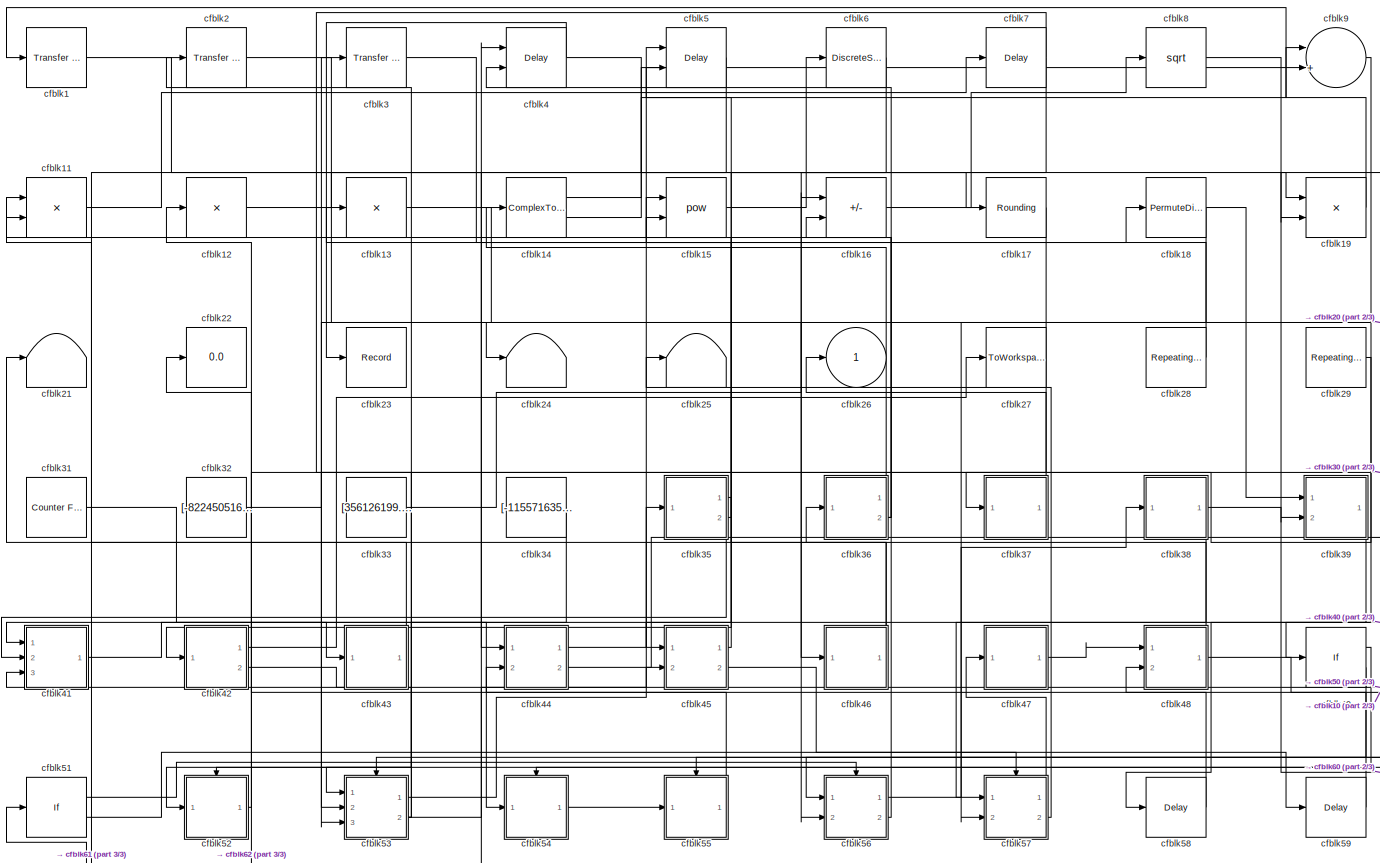
[diagram: root canvas - part 1/3, most of the canvas]
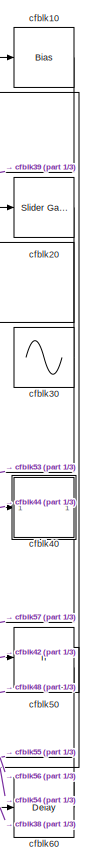
[diagram: root canvas - part 2/3, right side, full height]
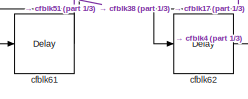
[diagram: root canvas - part 3/3, bottom left region]
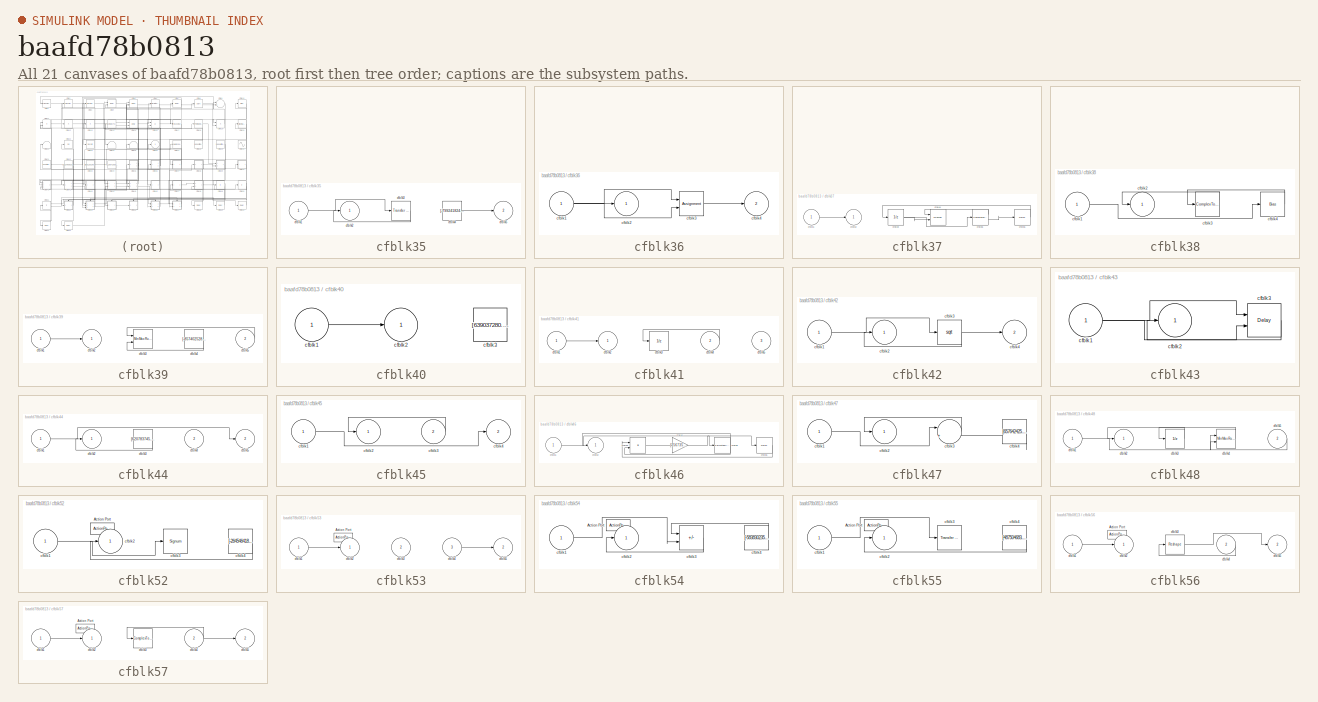
[diagram: thumbnail index - all 21 canvases of the model, root first then tree order]
MODEL slx_baafd78b0813
KIND model
CONFIG AbsTol = auto
CONFIG EnableMultiTasking = off
CONFIG FixedStep = auto
CONFIG MaxStep = auto
CONFIG MinStep = auto
CONFIG RelTol = 1e-3
CONFIG SampleTimeConstraint = Unconstrained
CONFIG SolverName = VariableStepAuto
CONFIG StartTime = 0.0
CONFIG StopTime = 10.0
BLOCK [Reference] cfblk1  REF=simulink/Discrete/Transfer Fcn
Lead or Lag
  Ports = [1, 1]
  SourceBlock = simulink/Discrete/Transfer Fcn\nLead or Lag
  SourceProductBaseCode = SL
  SourceType = Lead or Lag Compensator
BLOCK [Bias] cfblk10
  Bias = [-96006076.372713]
  SaturateOnIntegerOverflow = off
BLOCK [Product] cfblk11
  Inputs = **
  Ports = [2, 1]
BLOCK [Product] cfblk12
  Inputs = *
  Ports = [1, 1]
BLOCK [Product] cfblk13
  Inputs = *
  Ports = [1, 1]
BLOCK [ComplexToMagnitudeAngle] cfblk14
  Ports = [1, 2]
BLOCK [Math] cfblk15
  Operator = pow
  Ports = [2, 1]
BLOCK [Sum] cfblk16
  IconShape = rectangular
  Inputs = +-
  Ports = [2, 1]
BLOCK [Rounding] cfblk17
BLOCK [PermuteDimensions] cfblk18
BLOCK [Product] cfblk19
  Ports = [2, 1]
BLOCK [Reference] cfblk2  REF=simulink/Discrete/Transfer Fcn
Real Zero
  Ports = [1, 1]
  SourceBlock = simulink/Discrete/Transfer Fcn\nReal Zero
  SourceProductBaseCode = SL
  SourceType = Transfer Fcn Real Zero
BLOCK [Reference] cfblk20  REF=simulink/Math
Operations/Slider
Gain
  Ports = [1, 1]
  SourceBlock = simulink/Math\nOperations/Slider\nGain
  SourceProductBaseCode = SL
  SourceType = Slider Gain
BLOCK [Terminator] cfblk21
BLOCK [Display] cfblk22
  Decimation = 1
  Ports = [1]
BLOCK [Record] cfblk23
  FileSettingsInternal = {"entries":[{"content":{"excelSettings":{"content":{},"type":"Streamout.ExcelSettings"}},"type":"Streamout.FileSettingStorage","uuid":"3bb29845-961e-4fee-bd6d-4ce92e24b57c"}],"packageUris":["http://schema.mathworks.com/mf0/streamout_blocks/R2020a"],"version":"1.0"}
  Ports = [1]
  SignalsInternal = {"entries":[{"content":{"signals":[{"content":{"blockPath":["sampleModel184/cfblk23"],"channel":[],"dimensions":[1],"domain":"sampleModel184/cfblk23","lineColor":"#4dbeee","plots":[1],"port":1,"sid":[""],"signalID":6859,"signalName":"cfblk4"},"type":"RecordBlkView.Signal","uuid":"63a490c9-4ba1-4137-91fe-6ad1500206e2"}]},"type":"RecordBlkView.InputSignals","uuid":"3eea0c6d-d5bb-49b1-9db6-edc089c196...<+96ch>
  VisualizationBindings = {"sparklinesplugin":{"info":[{"bindingParametersList":[],"subplotID":1}]}}
BLOCK [Terminator] cfblk24
BLOCK [Terminator] cfblk25
BLOCK [Outport] cfblk26
BLOCK [ToWorkspace] cfblk27
  FixptAsFi = on
  MaxDataPoints = inf
  Ports = [1]
  SampleTime = -1
  SaveFormat = Timeseries
  VariableName = xvzsffu
BLOCK [Reference] cfblk28  REF=simulink/Sources/Repeating
Sequence
Stair
  Ports = [0, 1]
  SourceBlock = simulink/Sources/Repeating\nSequence\nStair
  SourceProductBaseCode = SL
  SourceType = Repeating Sequence Stair
BLOCK [Reference] cfblk29  REF=simulink/Sources/Repeating
Sequence
  Ports = [0, 1]
  SourceBlock = simulink/Sources/Repeating\nSequence
  SourceProductBaseCode = SL
  SourceType = Repeating table
BLOCK [Reference] cfblk3  REF=simulink/Discrete/Transfer Fcn
Lead or Lag
  Ports = [1, 1]
  SourceBlock = simulink/Discrete/Transfer Fcn\nLead or Lag
  SourceProductBaseCode = SL
  SourceType = Lead or Lag Compensator
BLOCK [Sin] cfblk30
  Amplitude = [486537178.471700]
  Bias = [-87359593.712021]
  Ports = [0, 1]
  SampleTime = 0
BLOCK [Reference] cfblk31  REF=simulink/Sources/Counter
Free-Running
  Ports = [0, 1]
  SourceBlock = simulink/Sources/Counter\nFree-Running
  SourceProductBaseCode = SL
  SourceType = Counter Free-Running
BLOCK [Constant] cfblk32
  SampleTime = 1
  Value = [-822450516.524072]
BLOCK [Constant] cfblk33
  SampleTime = 1
  Value = [356126199.868209]
BLOCK [Constant] cfblk34
  SampleTime = 1
  Value = [-115571635.708629]
BLOCK [SubSystem] cfblk35
  Ports = [1, 2]
  RequestExecContextInheritance = off
BLOCK [Inport] cfblk35/cfblk1
BLOCK [Outport] cfblk35/cfblk2
BLOCK [Reference] cfblk35/cfblk3  REF=simulink/Discrete/Transfer Fcn
First Order
  Ports = [1, 1]
  SourceBlock = simulink/Discrete/Transfer Fcn\nFirst Order
  SourceProductBaseCode = SL
  SourceType = First Order Transfer Fcn
BLOCK [Constant] cfblk35/cfblk4
  SampleTime = 1
  Value = [-799241824.796839]
BLOCK [Outport] cfblk35/cfblk5
  Port = 2
BLOCK [SubSystem] cfblk36
  Ports = [1, 2]
  RequestExecContextInheritance = off
BLOCK [Inport] cfblk36/cfblk1
BLOCK [Outport] cfblk36/cfblk2
BLOCK [Assignment] cfblk36/cfblk3
  DiagnosticForDimensions = Warning
  IndexOptions = Index vector (dialog)
  Indices = 1
  OutputSizes = 1
  Ports = [2, 1]
BLOCK [Outport] cfblk36/cfblk4
  Port = 2
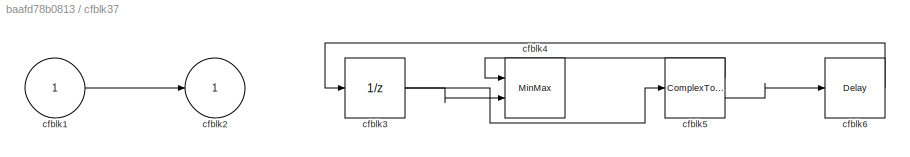
BLOCK [SubSystem] cfblk37
  Ports = [1, 1]
  RequestExecContextInheritance = off
BLOCK [Inport] cfblk37/cfblk1
BLOCK [Outport] cfblk37/cfblk2
BLOCK [UnitDelay] cfblk37/cfblk3
  HasFrameUpgradeWarning = on
BLOCK [MinMax] cfblk37/cfblk4
  Function = max
  Inputs = 2
  Ports = [2, 1]
BLOCK [ComplexToMagnitudeAngle] cfblk37/cfblk5
  Ports = [1, 2]
BLOCK [Delay] cfblk37/cfblk6
  InputPortMap = u0
  Ports = [1, 1]
  SampleTime = 1
BLOCK [SubSystem] cfblk38
  Ports = [1, 1]
  RequestExecContextInheritance = off
BLOCK [Inport] cfblk38/cfblk1
BLOCK [Outport] cfblk38/cfblk2
BLOCK [ComplexToMagnitudeAngle] cfblk38/cfblk3
  Ports = [1, 2]
BLOCK [Bias] cfblk38/cfblk4
  Bias = [821146582.759653]
  SaturateOnIntegerOverflow = off
BLOCK [SubSystem] cfblk39
  Ports = [2, 1]
  RequestExecContextInheritance = off
BLOCK [Inport] cfblk39/cfblk1
BLOCK [Outport] cfblk39/cfblk2
BLOCK [Reference] cfblk39/cfblk3  REF=simulink/Math
Operations/MinMax
Running
Resettable
  Ports = [2, 1]
  SourceBlock = simulink/Math\nOperations/MinMax\nRunning\nResettable
  SourceProductBaseCode = SL
  SourceType = MinMax Running Resettable
BLOCK [Constant] cfblk39/cfblk4
  SampleTime = 1
  Value = [-857402528.198781]
BLOCK [Inport] cfblk39/cfblk5
  Port = 2
BLOCK [Delay] cfblk4
  DelayLengthSource = Input port
  InputPortMap = u0,p1
  Ports = [2, 1]
  SampleTime = 1
BLOCK [SubSystem] cfblk40
  Ports = [1, 1]
  RequestExecContextInheritance = off
BLOCK [Inport] cfblk40/cfblk1
BLOCK [Outport] cfblk40/cfblk2
BLOCK [Constant] cfblk40/cfblk3
  SampleTime = 1
  Value = [639037280.351687]
BLOCK [SubSystem] cfblk41
  Ports = [3, 1]
  RequestExecContextInheritance = off
BLOCK [Inport] cfblk41/cfblk1
BLOCK [Outport] cfblk41/cfblk2
BLOCK [UnitDelay] cfblk41/cfblk3
  HasFrameUpgradeWarning = on
BLOCK [Inport] cfblk41/cfblk4
  Port = 2
BLOCK [Inport] cfblk41/cfblk5
  Port = 3
BLOCK [SubSystem] cfblk42
  Ports = [1, 2]
  RequestExecContextInheritance = off
BLOCK [Inport] cfblk42/cfblk1
BLOCK [Outport] cfblk42/cfblk2
BLOCK [Sqrt] cfblk42/cfblk3
BLOCK [Outport] cfblk42/cfblk4
  Port = 2
BLOCK [SubSystem] cfblk43
  Ports = [1, 1]
  RequestExecContextInheritance = off
BLOCK [Inport] cfblk43/cfblk1
BLOCK [Outport] cfblk43/cfblk2
BLOCK [Delay] cfblk43/cfblk3
  DelayLengthSource = Input port
  InputPortMap = u0,p1
  Ports = [2, 1]
  SampleTime = 1
BLOCK [SubSystem] cfblk44
  Ports = [2, 2]
  RequestExecContextInheritance = off
BLOCK [Inport] cfblk44/cfblk1
BLOCK [Outport] cfblk44/cfblk2
BLOCK [Constant] cfblk44/cfblk3
  SampleTime = 1
  Value = [620783745.037329]
BLOCK [Inport] cfblk44/cfblk4
  Port = 2
BLOCK [Outport] cfblk44/cfblk5
  Port = 2
BLOCK [SubSystem] cfblk45
  Ports = [2, 2]
  RequestExecContextInheritance = off
BLOCK [Inport] cfblk45/cfblk1
BLOCK [Outport] cfblk45/cfblk2
BLOCK [Inport] cfblk45/cfblk3
  Port = 2
BLOCK [Outport] cfblk45/cfblk4
  Port = 2
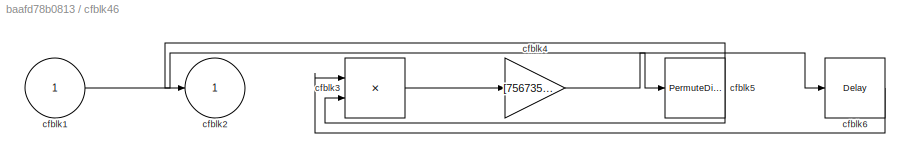
BLOCK [SubSystem] cfblk46
  Ports = [1, 1]
  RequestExecContextInheritance = off
BLOCK [Inport] cfblk46/cfblk1
BLOCK [Outport] cfblk46/cfblk2
BLOCK [Product] cfblk46/cfblk3
  Ports = [2, 1]
BLOCK [Gain] cfblk46/cfblk4
  Gain = [756735189.755413]
BLOCK [PermuteDimensions] cfblk46/cfblk5
BLOCK [Delay] cfblk46/cfblk6
  InputPortMap = u0
  Ports = [1, 1]
  SampleTime = 1
BLOCK [SubSystem] cfblk47
  Ports = [1, 1]
  RequestExecContextInheritance = off
BLOCK [Inport] cfblk47/cfblk1
BLOCK [Outport] cfblk47/cfblk2
BLOCK [Sum] cfblk47/cfblk3
  Inputs = |++
  Ports = [2, 1]
BLOCK [Constant] cfblk47/cfblk4
  SampleTime = 1
  Value = [657642425.472203]
BLOCK [SubSystem] cfblk48
  Ports = [2, 1]
  RequestExecContextInheritance = off
BLOCK [Inport] cfblk48/cfblk1
BLOCK [Outport] cfblk48/cfblk2
BLOCK [UnitDelay] cfblk48/cfblk3
  HasFrameUpgradeWarning = on
BLOCK [Reference] cfblk48/cfblk4  REF=simulink/Math
Operations/MinMax
Running
Resettable
  Ports = [2, 1]
  SourceBlock = simulink/Math\nOperations/MinMax\nRunning\nResettable
  SourceProductBaseCode = SL
  SourceType = MinMax Running Resettable
BLOCK [Inport] cfblk48/cfblk5
  Port = 2
BLOCK [If] cfblk49
  IfExpression = u1 >= 0
  Ports = [1, 2]
  SampleTime = 1
BLOCK [Delay] cfblk5
  InputPortMap = u0,e6
  Ports = [2, 1]
  SampleTime = 1
  ShowEnablePort = on
BLOCK [If] cfblk50
  IfExpression = u1 >= 0
  Ports = [1, 2]
  SampleTime = 1
BLOCK [If] cfblk51
  IfExpression = u1 >= 0
  Ports = [1, 2]
  SampleTime = 1
BLOCK [SubSystem] cfblk52
  Ports = [1, 1, 0, 0, 0, 0, 0, 1]
  RequestExecContextInheritance = off
  TreatAsAtomicUnit = on
BLOCK [ActionPort] cfblk52/Action Port
  ActionPortLabel = if(u1 >= 0)
BLOCK [Inport] cfblk52/cfblk1
BLOCK [Outport] cfblk52/cfblk2
BLOCK [Signum] cfblk52/cfblk3
BLOCK [Constant] cfblk52/cfblk4
  SampleTime = 1
  Value = [-264546418.814000]
BLOCK [SubSystem] cfblk53
  Ports = [3, 2, 0, 0, 0, 0, 0, 1]
  RequestExecContextInheritance = off
  TreatAsAtomicUnit = on
BLOCK [ActionPort] cfblk53/Action Port
  ActionPortLabel = else
BLOCK [Inport] cfblk53/cfblk1
BLOCK [Outport] cfblk53/cfblk2
BLOCK [Inport] cfblk53/cfblk3
  Port = 2
BLOCK [Inport] cfblk53/cfblk4
  Port = 3
BLOCK [Outport] cfblk53/cfblk5
  Port = 2
BLOCK [SubSystem] cfblk54
  Ports = [1, 1, 0, 0, 0, 0, 0, 1]
  RequestExecContextInheritance = off
  TreatAsAtomicUnit = on
BLOCK [ActionPort] cfblk54/Action Port
  ActionPortLabel = if(u1 >= 0)
BLOCK [Inport] cfblk54/cfblk1
BLOCK [Outport] cfblk54/cfblk2
BLOCK [Sum] cfblk54/cfblk3
  IconShape = rectangular
  Inputs = -+
  Ports = [2, 1]
BLOCK [Constant] cfblk54/cfblk4
  SampleTime = 1
  Value = [-583830235.402709]
BLOCK [SubSystem] cfblk55
  Ports = [1, 1, 0, 0, 0, 0, 0, 1]
  RequestExecContextInheritance = off
  TreatAsAtomicUnit = on
BLOCK [ActionPort] cfblk55/Action Port
  ActionPortLabel = else
BLOCK [Inport] cfblk55/cfblk1
BLOCK [Outport] cfblk55/cfblk2
BLOCK [Reference] cfblk55/cfblk3  REF=simulink/Discrete/Transfer Fcn
Lead or Lag
  Ports = [1, 1]
  SourceBlock = simulink/Discrete/Transfer Fcn\nLead or Lag
  SourceProductBaseCode = SL
  SourceType = Lead or Lag Compensator
BLOCK [Constant] cfblk55/cfblk4
  SampleTime = 1
  Value = [487504683.906193]
BLOCK [SubSystem] cfblk56
  Ports = [2, 2, 0, 0, 0, 0, 0, 1]
  RequestExecContextInheritance = off
  TreatAsAtomicUnit = on
BLOCK [ActionPort] cfblk56/Action Port
  ActionPortLabel = if(u1 >= 0)
BLOCK [Inport] cfblk56/cfblk1
BLOCK [Outport] cfblk56/cfblk2
BLOCK [Reshape] cfblk56/cfblk3
  Ports = [1, 1]
BLOCK [Inport] cfblk56/cfblk4
  Port = 2
BLOCK [Outport] cfblk56/cfblk5
  Port = 2
BLOCK [SubSystem] cfblk57
  Ports = [2, 2, 0, 0, 0, 0, 0, 1]
  RequestExecContextInheritance = off
  TreatAsAtomicUnit = on
BLOCK [ActionPort] cfblk57/Action Port
  ActionPortLabel = else
BLOCK [Inport] cfblk57/cfblk1
BLOCK [Outport] cfblk57/cfblk2
BLOCK [ComplexToRealImag] cfblk57/cfblk3
  Ports = [1, 2]
BLOCK [Inport] cfblk57/cfblk4
  Port = 2
BLOCK [Outport] cfblk57/cfblk5
  Port = 2
BLOCK [Delay] cfblk58
  InputPortMap = u0
  Ports = [1, 1]
  SampleTime = 1
BLOCK [Delay] cfblk59
  InputPortMap = u0
  Ports = [1, 1]
  SampleTime = 1
BLOCK [DiscreteStateSpace] cfblk6
BLOCK [Delay] cfblk60
  InputPortMap = u0
  Ports = [1, 1]
  SampleTime = 1
BLOCK [Delay] cfblk61
  InputPortMap = u0
  Ports = [1, 1]
  SampleTime = 1
BLOCK [Delay] cfblk62
  InputPortMap = u0
  Ports = [1, 1]
  SampleTime = 1
BLOCK [Delay] cfblk7
  InputPortMap = u0
  Ports = [1, 1]
  SampleTime = 1
BLOCK [Sqrt] cfblk8
BLOCK [Sum] cfblk9
  Inputs = |++
  Ports = [2, 1]
LINE cfblk10:1 -> cfblk39:2
LINE cfblk11:1 -> cfblk7:1
LINE cfblk12:1 -> cfblk19:1
LINE cfblk13:1 -> cfblk46:1
LINE cfblk14:1 -> cfblk9:1
LINE cfblk14:2 -> cfblk9:2
LINE cfblk15:1 -> cfblk6:1
LINE cfblk16:1 -> cfblk8:1
LINE cfblk17:1 -> cfblk62:1
NET cfblk18:1 -> cfblk39:1, cfblk53:2
LINE cfblk19:1 -> cfblk1:1
LINE cfblk1:1 -> cfblk44:1
LINE cfblk20:1 -> cfblk57:2
LINE cfblk28:1 -> cfblk13:1
LINE cfblk29:1 -> cfblk49:1
LINE cfblk2:1 -> cfblk24:1
NET cfblk30:1 -> cfblk20:1, cfblk53:3
LINE cfblk31:1 -> cfblk54:1
LINE cfblk32:1 -> cfblk3:1
LINE cfblk33:1 -> cfblk16:1
LINE cfblk34:1 -> cfblk53:1
LINE cfblk35/cfblk1:1 -> cfblk35/cfblk3:1
LINE cfblk35/cfblk3:1 -> cfblk35/cfblk2:1
LINE cfblk35/cfblk4:1 -> cfblk35/cfblk5:1
LINE cfblk35:1 -> cfblk42:1
NET cfblk35:2 -> cfblk15:1, cfblk41:2
NET cfblk36/cfblk1:1 -> cfblk36/cfblk2:1, cfblk36/cfblk3:1, cfblk36/cfblk3:2
LINE cfblk36/cfblk3:1 -> cfblk36/cfblk4:1
LINE cfblk36:1 -> cfblk14:1
NET cfblk36:2 -> cfblk11:1, cfblk16:2
LINE cfblk37/cfblk1:1 -> cfblk37/cfblk2:1
NET cfblk37/cfblk3:1 -> cfblk37/cfblk4:2, cfblk37/cfblk5:1
LINE cfblk37/cfblk5:1 -> cfblk37/cfblk4:1
LINE cfblk37/cfblk5:2 -> cfblk37/cfblk6:1
LINE cfblk37/cfblk6:1 -> cfblk37/cfblk3:1
LINE cfblk37:1 -> cfblk26:1
LINE cfblk38/cfblk1:1 -> cfblk38/cfblk4:1
LINE cfblk38/cfblk3:1 -> cfblk38/cfblk2:1
LINE cfblk38/cfblk4:1 -> cfblk38/cfblk3:1
NET cfblk38:1 -> cfblk60:1, cfblk61:1
LINE cfblk39/cfblk1:1 -> cfblk39/cfblk2:1
LINE cfblk39/cfblk4:1 -> cfblk39/cfblk3:2
LINE cfblk39/cfblk5:1 -> cfblk39/cfblk3:1
LINE cfblk39:1 -> cfblk58:1
LINE cfblk3:1 -> cfblk18:1
LINE cfblk40/cfblk1:1 -> cfblk40/cfblk2:1
LINE cfblk40:1 -> cfblk57:1
LINE cfblk41/cfblk1:1 -> cfblk41/cfblk2:1
LINE cfblk41/cfblk4:1 -> cfblk41/cfblk3:1
LINE cfblk41:1 -> cfblk43:1
LINE cfblk42/cfblk1:1 -> cfblk42/cfblk3:1
NET cfblk42/cfblk3:1 -> cfblk42/cfblk2:1, cfblk42/cfblk4:1
LINE cfblk42:1 -> cfblk27:1
LINE cfblk42:2 -> cfblk50:1
NET cfblk43/cfblk1:1 -> cfblk43/cfblk3:1, cfblk43/cfblk3:2
LINE cfblk43/cfblk3:1 -> cfblk43/cfblk2:1
LINE cfblk43:1 -> cfblk21:1
LINE cfblk44/cfblk1:1 -> cfblk44/cfblk5:1
LINE cfblk44/cfblk3:1 -> cfblk44/cfblk2:1
LINE cfblk44:1 -> cfblk5:1
LINE cfblk44:2 -> cfblk40:1
LINE cfblk45/cfblk1:1 -> cfblk45/cfblk4:1
LINE cfblk45/cfblk3:1 -> cfblk45/cfblk2:1
LINE cfblk45:1 -> cfblk5:2
LINE cfblk45:2 -> cfblk59:1
LINE cfblk46/cfblk1:1 -> cfblk46/cfblk5:1
LINE cfblk46/cfblk3:1 -> cfblk46/cfblk4:1
LINE cfblk46/cfblk4:1 -> cfblk46/cfblk6:1
NET cfblk46/cfblk5:1 -> cfblk46/cfblk2:1, cfblk46/cfblk3:2
LINE cfblk46/cfblk6:1 -> cfblk46/cfblk3:1
NET cfblk46:1 -> cfblk15:2, cfblk36:1
LINE cfblk47/cfblk1:1 -> cfblk47/cfblk3:1
LINE cfblk47/cfblk3:1 -> cfblk47/cfblk2:1
LINE cfblk47/cfblk4:1 -> cfblk47/cfblk3:2
LINE cfblk47:1 -> cfblk48:1
LINE cfblk48/cfblk1:1 -> cfblk48/cfblk4:1
LINE cfblk48/cfblk3:1 -> cfblk48/cfblk2:1
LINE cfblk48/cfblk4:1 -> cfblk48/cfblk3:1
LINE cfblk48/cfblk5:1 -> cfblk48/cfblk4:2
NET cfblk48:1 -> cfblk10:1, cfblk11:2
LINE cfblk49:1 -> cfblk52:ifaction
LINE cfblk49:2 -> cfblk53:ifaction
NET cfblk4:1 -> cfblk17:1, cfblk23:1
LINE cfblk50:1 -> cfblk54:ifaction
LINE cfblk50:2 -> cfblk55:ifaction
LINE cfblk51:1 -> cfblk56:ifaction
LINE cfblk51:2 -> cfblk57:ifaction
LINE cfblk52/cfblk1:1 -> cfblk52/cfblk3:1
LINE cfblk52/cfblk4:1 -> cfblk52/cfblk2:1
LINE cfblk52:1 -> cfblk22:1
LINE cfblk53/cfblk1:1 -> cfblk53/cfblk2:1
LINE cfblk53/cfblk4:1 -> cfblk53/cfblk5:1
LINE cfblk53:1 -> cfblk35:1
NET cfblk53:2 -> cfblk2:1, cfblk41:3, cfblk45:2
LINE cfblk54/cfblk1:1 -> cfblk54/cfblk3:2
LINE cfblk54/cfblk3:1 -> cfblk54/cfblk2:1
LINE cfblk54/cfblk4:1 -> cfblk54/cfblk3:1
LINE cfblk54:1 -> cfblk55:1
LINE cfblk55/cfblk1:1 -> cfblk55/cfblk3:1
LINE cfblk55/cfblk4:1 -> cfblk55/cfblk2:1
LINE cfblk55:1 -> cfblk12:1
LINE cfblk56/cfblk1:1 -> cfblk56/cfblk2:1
LINE cfblk56/cfblk3:1 -> cfblk56/cfblk5:1
LINE cfblk56/cfblk4:1 -> cfblk56/cfblk3:1
LINE cfblk56:1 -> cfblk38:1
LINE cfblk56:2 -> cfblk4:2
LINE cfblk57/cfblk1:1 -> cfblk57/cfblk2:1
NET cfblk57/cfblk4:1 -> cfblk57/cfblk3:1, cfblk57/cfblk5:1
LINE cfblk57:1 -> cfblk47:1
LINE cfblk57:2 -> cfblk25:1
LINE cfblk58:1 -> cfblk48:2
LINE cfblk59:1 -> cfblk44:2
LINE cfblk5:1 -> cfblk41:1
LINE cfblk60:1 -> cfblk56:1
LINE cfblk61:1 -> cfblk51:1
LINE cfblk62:1 -> cfblk4:1
LINE cfblk6:1 -> cfblk56:2
NET cfblk7:1 -> cfblk45:1, cfblk52:1
LINE cfblk8:1 -> cfblk19:2
LINE cfblk9:1 -> cfblk37:1
note: NET lines group one-source signal fan-out (src -> all destinations, sorted); 1:1 wires keep LINE
